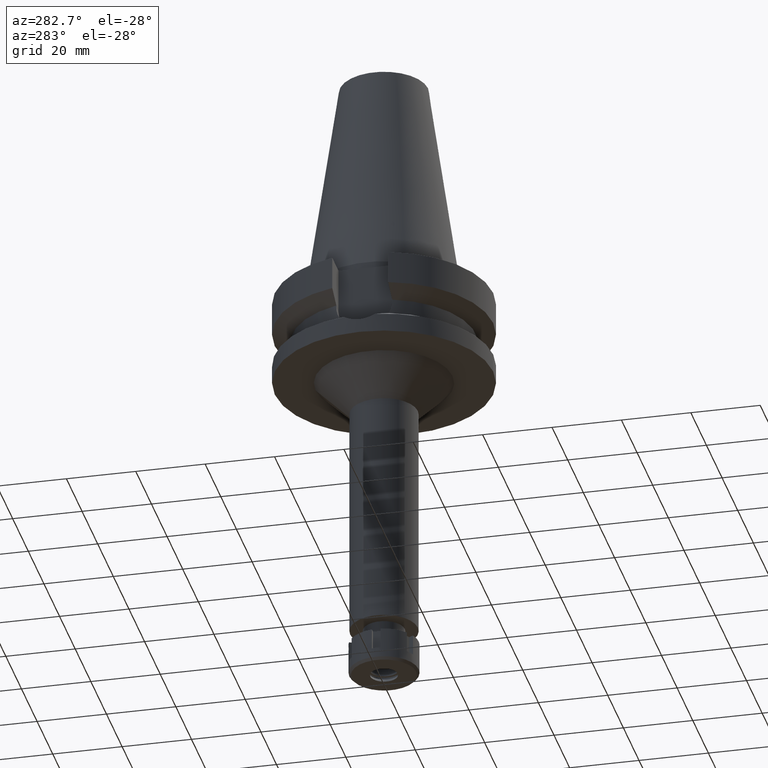
[diagram: clean part render]
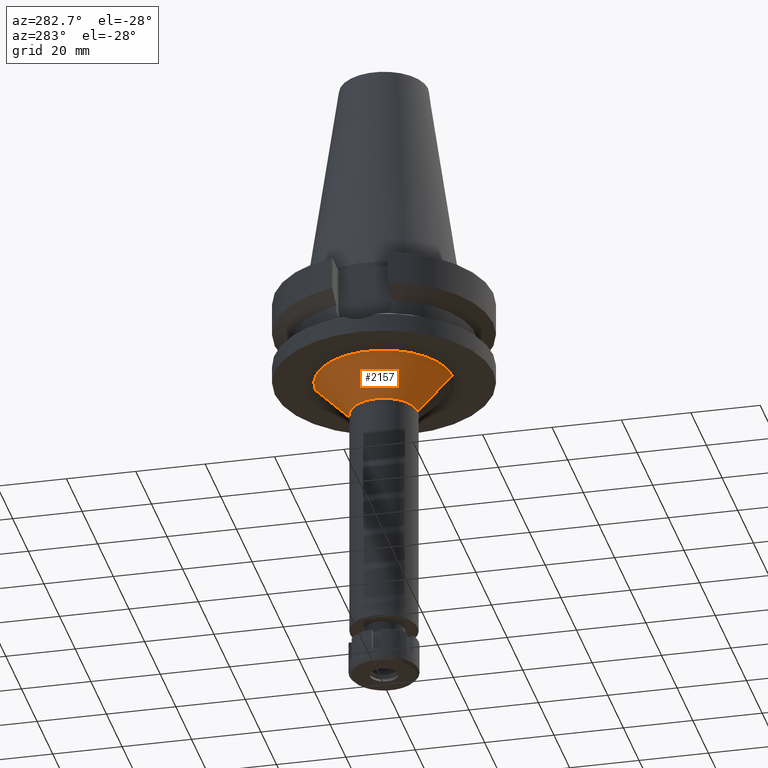
[diagram: same view with one face highlighted and labeled with its STEP entity id]
A machine part, auxiliary view. The second image highlights one B-rep face of the part: STEP entity #2157.
In plain terms, the highlighted conical surface has half-angle 45 deg.
Its self-contained STEP definition (entity closure, byte-faithful):
#4 = DIRECTION ( 'NONE',  ( 0.0000000000000000000, 0.0000000000000000000, -1.000000000000000000 ) ) ;
#376 = EDGE_CURVE ( 'NONE', #1575, #1541, #1160, .T. ) ;
#463 = EDGE_CURVE ( 'NONE', #2571, #2239, #1796, .T. ) ;
#603 = CARTESIAN_POINT ( 'NONE',  ( 0.0000000000000000000, 0.0000000000000000000, -37.00000000000000000 ) ) ;
#624 = VECTOR ( 'NONE', #664, 1000.000000000000114 ) ;
#646 = CARTESIAN_POINT ( 'NONE',  ( 0.0000000000000000000, 19.75000000000000000, -27.00000000000000000 ) ) ;
#664 = DIRECTION ( 'NONE',  ( 0.0000000000000000000, 0.7071067811865474617, -0.7071067811865474617 ) ) ;
#681 = AXIS2_PLACEMENT_3D ( 'NONE', #1975, #1921, #2212 ) ;
#692 = DIRECTION ( 'NONE',  ( 0.0000000000000000000, 0.0000000000000000000, -1.000000000000000000 ) ) ;
#727 = CIRCLE ( 'NONE', #1017, 19.75000000000000000 ) ;
#790 = CARTESIAN_POINT ( 'NONE',  ( 0.0000000000000000000, 9.750000000000000000, -37.00000000000000000 ) ) ;
#928 = CARTESIAN_POINT ( 'NONE',  ( 0.0000000000000000000, 0.0000000000000000000, -27.00000000000000000 ) ) ;
#939 = EDGE_CURVE ( 'NONE', #1541, #2239, #3326, .T. ) ;
#1017 = AXIS2_PLACEMENT_3D ( 'NONE', #928, #692, #1787 ) ;
#1160 = LINE ( 'NONE', #3145, #624 ) ;
#1377 = CONICAL_SURFACE ( 'NONE', #681, 14.75000000000000000, 0.7853981633972997312 ) ;
#1541 = VERTEX_POINT ( 'NONE', #2778 ) ;
#1575 = VERTEX_POINT ( 'NONE', #2196 ) ;
#1599 = ORIENTED_EDGE ( 'NONE', *, *, #3274, .T. ) ;
#1753 = VECTOR ( 'NONE', #1779, 1000.000000000000114 ) ;
#1779 = DIRECTION ( 'NONE',  ( 0.0000000000000000000, -0.7071067811865474617, -0.7071067811865474617 ) ) ;
#1787 = DIRECTION ( 'NONE',  ( 0.0000000000000000000, -1.000000000000000000, 0.0000000000000000000 ) ) ;
#1796 = LINE ( 'NONE', #646, #1753 ) ;
#1921 = DIRECTION ( 'NONE',  ( 0.0000000000000000000, 0.0000000000000000000, 1.000000000000000000 ) ) ;
#1975 = CARTESIAN_POINT ( 'NONE',  ( 0.0000000000000000000, 0.0000000000000000000, -32.00000000000000000 ) ) ;
#2157 = ADVANCED_FACE ( 'NONE', ( #3110 ), #1377, .T. ) ;
#2196 = CARTESIAN_POINT ( 'NONE',  ( 0.0000000000000000000, -19.75000000000000000, -27.00000000000000000 ) ) ;
#2212 = DIRECTION ( 'NONE',  ( 0.0000000000000000000, 1.000000000000000000, 0.0000000000000000000 ) ) ;
#2239 = VERTEX_POINT ( 'NONE', #790 ) ;
#2441 = ORIENTED_EDGE ( 'NONE', *, *, #939, .F. ) ;
#2571 = VERTEX_POINT ( 'NONE', #2947 ) ;
#2778 = CARTESIAN_POINT ( 'NONE',  ( 0.0000000000000000000, -9.750000000000000000, -37.00000000000000000 ) ) ;
#2947 = CARTESIAN_POINT ( 'NONE',  ( 0.0000000000000000000, 19.75000000000000000, -27.00000000000000000 ) ) ;
#3110 = FACE_OUTER_BOUND ( 'NONE', #3133, .T. ) ;
#3133 = EDGE_LOOP ( 'NONE', ( #2441, #3375, #1599, #3581 ) ) ;
#3145 = CARTESIAN_POINT ( 'NONE',  ( 0.0000000000000000000, -19.75000000000000000, -27.00000000000000000 ) ) ;
#3179 = DIRECTION ( 'NONE',  ( 0.0000000000000000000, -1.000000000000000000, 0.0000000000000000000 ) ) ;
#3274 = EDGE_CURVE ( 'NONE', #1575, #2571, #727, .T. ) ;
#3326 = CIRCLE ( 'NONE', #3623, 9.750000000000000000 ) ;
#3375 = ORIENTED_EDGE ( 'NONE', *, *, #376, .F. ) ;
#3581 = ORIENTED_EDGE ( 'NONE', *, *, #463, .T. ) ;
#3623 = AXIS2_PLACEMENT_3D ( 'NONE', #603, #4, #3179 ) ;